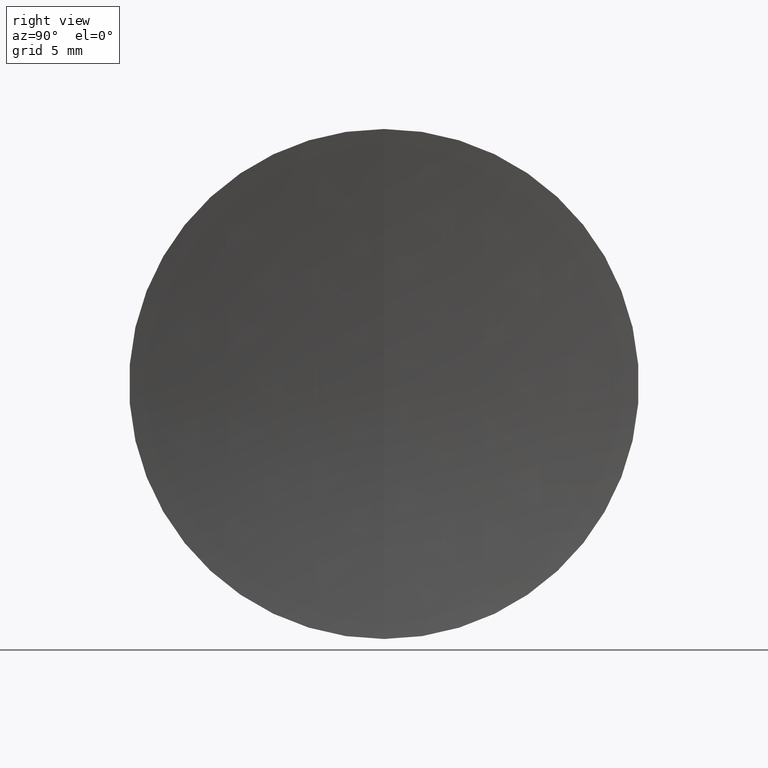
[diagram: clean part render]
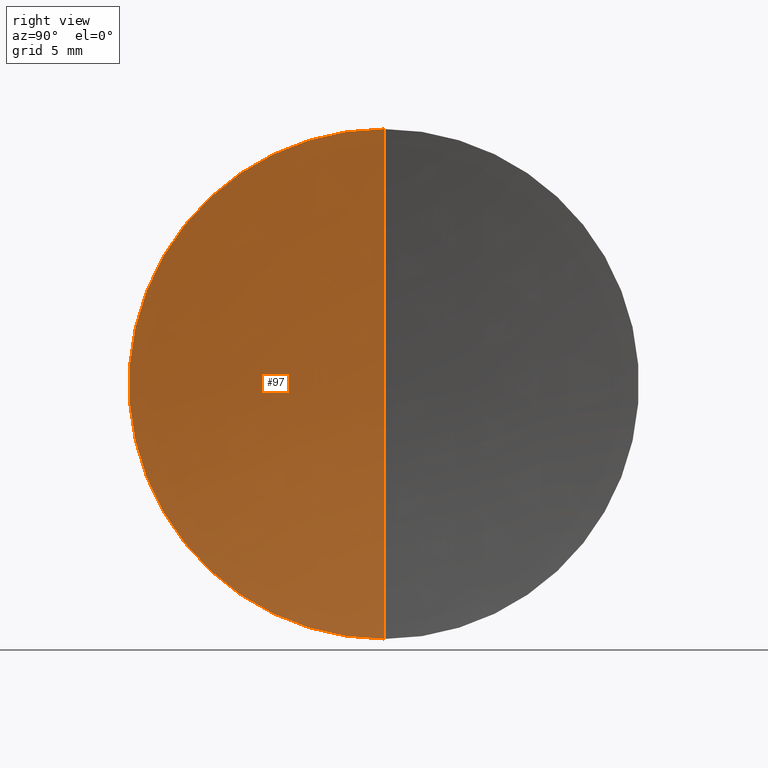
[diagram: same view with one face highlighted and labeled with its STEP entity id]
A machine part, right view. The second image highlights one B-rep face of the part: STEP entity #97.
In plain terms, the highlighted spherical surface has radius 100 mm.
Its self-contained STEP definition (entity closure, byte-faithful):
#1 = CARTESIAN_POINT ( 'NONE',  ( 6.349728299595833300, 0.0000000000000000000, 0.0000000000000000000 ) ) ;
#6 = DIRECTION ( 'NONE',  ( -0.0000000000000000000, 1.000000000000000000, 1.224646799147353200E-016 ) ) ;
#7 = CARTESIAN_POINT ( 'NONE',  ( 105.5400000000000100, 0.0000000000000000000, 0.0000000000000000000 ) ) ;
#8 = CIRCLE ( 'NONE', #31, 100.0000000000000000 ) ;
#25 = SPHERICAL_SURFACE ( 'NONE', #61, 100.0000000000000000 ) ;
#26 = DIRECTION ( 'NONE',  ( 0.0000000000000000000, 1.000000000000000000, 0.0000000000000000000 ) ) ;
#29 = DIRECTION ( 'NONE',  ( 0.0000000000000000000, -1.000000000000000000, 0.0000000000000000000 ) ) ;
#31 = AXIS2_PLACEMENT_3D ( 'NONE', #94, #6, #82 ) ;
#34 = ORIENTED_EDGE ( 'NONE', *, *, #166, .T. ) ;
#38 = CARTESIAN_POINT ( 'NONE',  ( 105.5400000000000100, 0.0000000000000000000, 0.0000000000000000000 ) ) ;
#49 = AXIS2_PLACEMENT_3D ( 'NONE', #1, #77, #153 ) ;
#61 = AXIS2_PLACEMENT_3D ( 'NONE', #38, #26, #140 ) ;
#63 = CIRCLE ( 'NONE', #49, 12.70000000000002400 ) ;
#68 = EDGE_CURVE ( 'NONE', #149, #100, #63, .T. ) ;
#70 = CARTESIAN_POINT ( 'NONE',  ( 6.349728299595833300, 1.555301434917139200E-015, -12.70000000000000600 ) ) ;
#72 = ORIENTED_EDGE ( 'NONE', *, *, #108, .F. ) ;
#76 = VERTEX_POINT ( 'NONE', #112 ) ;
#77 = DIRECTION ( 'NONE',  ( -1.000000000000000000, -0.0000000000000000000, -0.0000000000000000000 ) ) ;
#82 = DIRECTION ( 'NONE',  ( 0.0000000000000000000, -1.224646799147353200E-016, 1.000000000000000000 ) ) ;
#85 = EDGE_LOOP ( 'NONE', ( #125, #34, #72 ) ) ;
#89 = FACE_OUTER_BOUND ( 'NONE', #85, .T. ) ;
#90 = CARTESIAN_POINT ( 'NONE',  ( 6.349728299595833300, 0.0000000000000000000, 12.70000000000000600 ) ) ;
#94 = CARTESIAN_POINT ( 'NONE',  ( 105.5400000000000100, 0.0000000000000000000, 0.0000000000000000000 ) ) ;
#97 = ADVANCED_FACE ( 'NONE', ( #89 ), #25, .F. ) ;
#100 = VERTEX_POINT ( 'NONE', #90 ) ;
#108 = EDGE_CURVE ( 'NONE', #100, #76, #110, .T. ) ;
#110 = CIRCLE ( 'NONE', #117, 100.0000000000000000 ) ;
#112 = CARTESIAN_POINT ( 'NONE',  ( 5.540000000000003600, 0.0000000000000000000, 6.123233995736766100E-015 ) ) ;
#115 = DIRECTION ( 'NONE',  ( 0.0000000000000000000, 0.0000000000000000000, -1.000000000000000000 ) ) ;
#117 = AXIS2_PLACEMENT_3D ( 'NONE', #7, #29, #115 ) ;
#125 = ORIENTED_EDGE ( 'NONE', *, *, #68, .F. ) ;
#140 = DIRECTION ( 'NONE',  ( 0.0000000000000000000, 0.0000000000000000000, 1.000000000000000000 ) ) ;
#149 = VERTEX_POINT ( 'NONE', #70 ) ;
#153 = DIRECTION ( 'NONE',  ( 0.0000000000000000000, 0.0000000000000000000, 1.000000000000000000 ) ) ;
#166 = EDGE_CURVE ( 'NONE', #149, #76, #8, .T. ) ;